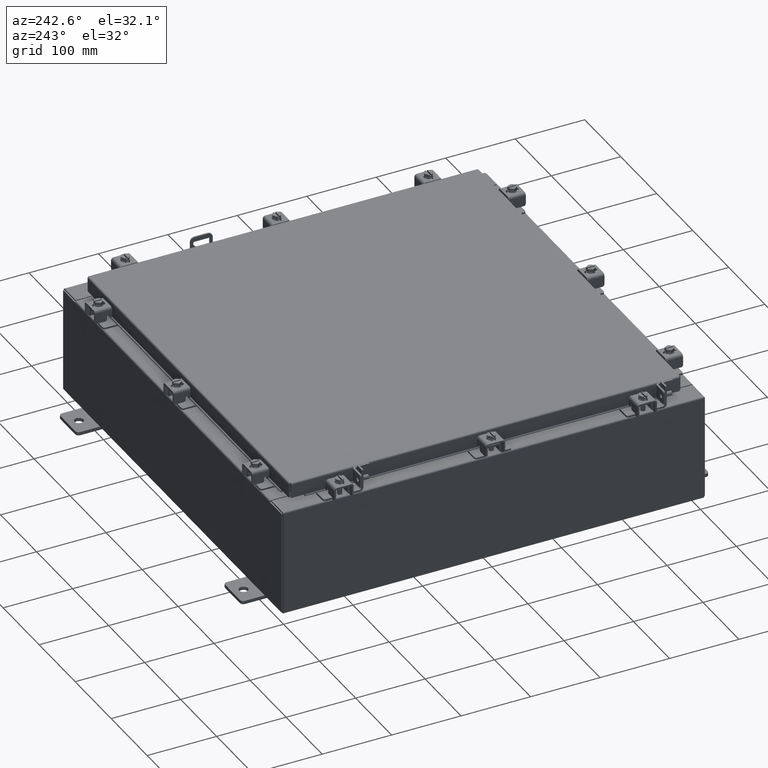
[diagram: clean part render]
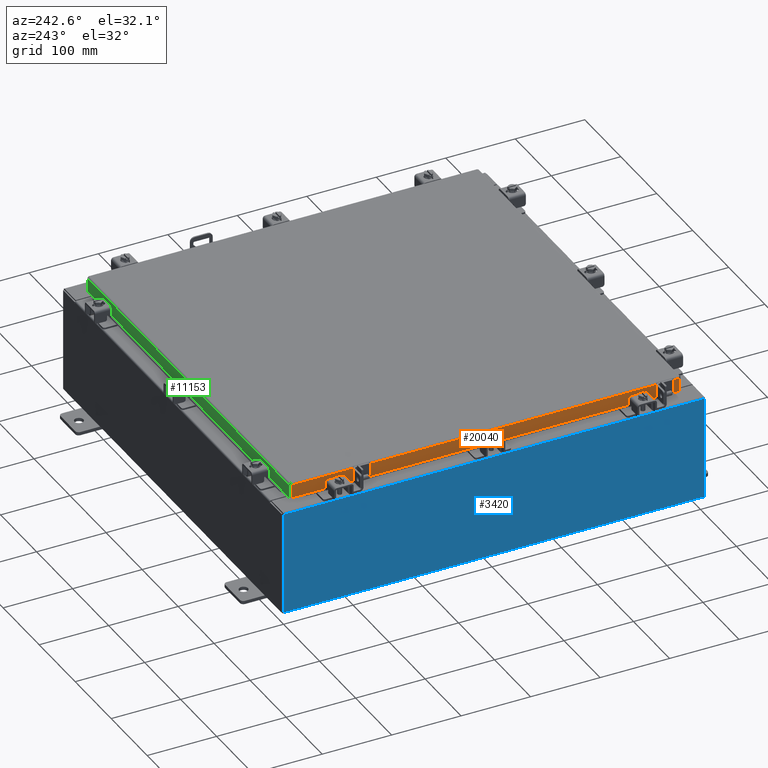
[diagram: same view with three faces highlighted in distinct colors, each labeled with its STEP entity id]
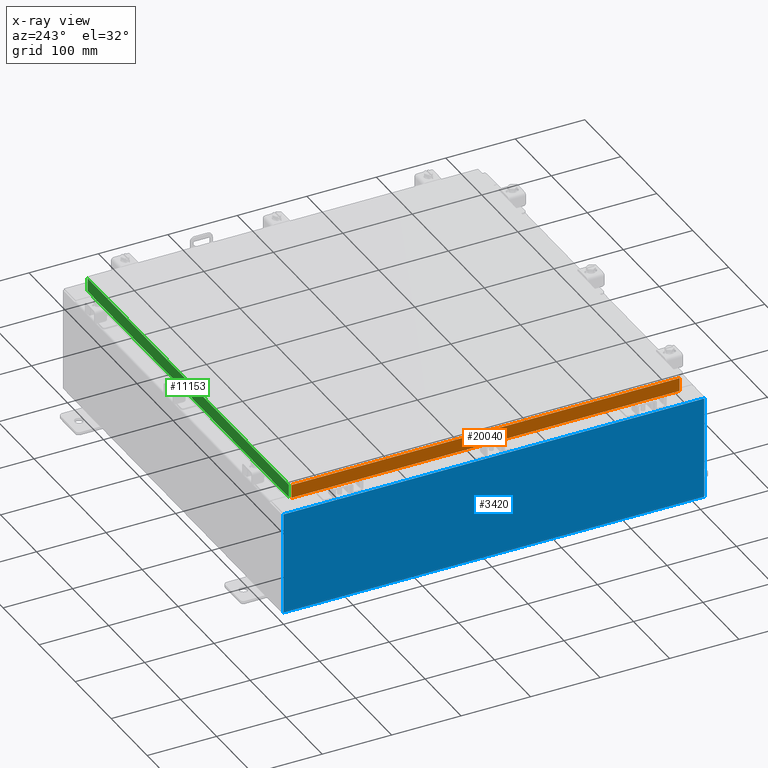
[diagram: x-ray of the same camera — body ghosted, the three highlighted faces saturated]
A machine part, auxiliary view with three faces highlighted in distinct colors.
The next image is the same camera in x-ray (body ghosted, the three faces saturated) — at least one of them is partly hidden behind the body in this view.
Their STEP definitions:

[orange] entity #20040 — the highlighted planar face has unit normal (1, 0, -0).
#373 = CARTESIAN_POINT ( 'NONE',  ( -11.09399999999999800, 10.25515786437626000, -0.8500000000000020900 ) ) ;
#408 = DIRECTION ( 'NONE',  ( 4.379057701015054300E-047, 1.000000000000000000, 1.169666303398706800E-016 ) ) ;
#623 = VECTOR ( 'NONE', #22345, 39.37007874015748100 ) ;
#933 = EDGE_CURVE ( 'NONE', #17993, #19716, #14492, .T. ) ;
#2970 = DIRECTION ( 'NONE',  ( -2.818880942772360100E-015, 6.982962677686267500E-015, -1.000000000000000000 ) ) ;
#3182 = LINE ( 'NONE', #21773, #21200 ) ;
#3230 = VECTOR ( 'NONE', #5118, 39.37007874015748100 ) ;
#3777 = CARTESIAN_POINT ( 'NONE',  ( -11.09400000000000300, 0.0000000000000000000, 3.168943672650545400E-014 ) ) ;
#5013 = VERTEX_POINT ( 'NONE', #12050 ) ;
#5118 = DIRECTION ( 'NONE',  ( 3.297150052053608400E-031, -1.000000000000000000, -8.987264781119276500E-046 ) ) ;
#5540 = EDGE_CURVE ( 'NONE', #5013, #14260, #3182, .T. ) ;
#5773 = VERTEX_POINT ( 'NONE', #22375 ) ;
#6154 = CARTESIAN_POINT ( 'NONE',  ( -11.09400000000000700, 11.00515786437626900, -0.8499999999999966500 ) ) ;
#6810 = CARTESIAN_POINT ( 'NONE',  ( -11.09400000000000300, -11.09400000000000100, -0.08770000000000026400 ) ) ;
#7625 = EDGE_CURVE ( 'NONE', #5773, #5013, #20253, .T. ) ;
#7809 = CARTESIAN_POINT ( 'NONE',  ( -11.09400000000000300, -11.00515786437626900, -0.08770000000000026400 ) ) ;
#8253 = CARTESIAN_POINT ( 'NONE',  ( -11.09400000000000300, -11.00515786437626900, -0.07470000000000015500 ) ) ;
#8983 = PLANE ( 'NONE',  #19942 ) ;
#9055 = DIRECTION ( 'NONE',  ( -2.818880942772360100E-015, 0.0000000000000000000, -1.000000000000000000 ) ) ;
#9640 = EDGE_CURVE ( 'NONE', #17993, #17828, #21253, .T. ) ;
#10438 = VECTOR ( 'NONE', #13804, 39.37007874015748100 ) ;
#10465 = ORIENTED_EDGE ( 'NONE', *, *, #7625, .F. ) ;
#10481 = EDGE_CURVE ( 'NONE', #14260, #19716, #20946, .T. ) ;
#10825 = CARTESIAN_POINT ( 'NONE',  ( -11.09400000000000700, -11.09400000000000100, -0.8499999999999999800 ) ) ;
#11690 = VECTOR ( 'NONE', #408, 39.37007874015748100 ) ;
#12050 = CARTESIAN_POINT ( 'NONE',  ( -11.09399999999999800, -10.25515786437626400, -0.8500000000000020900 ) ) ;
#13586 = FACE_OUTER_BOUND ( 'NONE', #19307, .T. ) ;
#13804 = DIRECTION ( 'NONE',  ( 4.379057701015054300E-047, 1.000000000000000000, 1.169666303398706800E-016 ) ) ;
#14260 = VERTEX_POINT ( 'NONE', #373 ) ;
#14492 = LINE ( 'NONE', #22510, #623 ) ;
#15310 = VECTOR ( 'NONE', #2970, 39.37007874015748100 ) ;
#15567 = CARTESIAN_POINT ( 'NONE',  ( -11.09400000000000700, -11.09400000000000100, -0.8499999999999999800 ) ) ;
#15833 = LINE ( 'NONE', #8253, #15310 ) ;
#16530 = EDGE_CURVE ( 'NONE', #17828, #5773, #15833, .T. ) ;
#16878 = CARTESIAN_POINT ( 'NONE',  ( -11.09400000000000300, 11.00515786437626400, -0.08770000000000026400 ) ) ;
#17589 = ORIENTED_EDGE ( 'NONE', *, *, #16530, .F. ) ;
#17828 = VERTEX_POINT ( 'NONE', #7809 ) ;
#17993 = VERTEX_POINT ( 'NONE', #16878 ) ;
#18831 = ORIENTED_EDGE ( 'NONE', *, *, #9640, .F. ) ;
#19204 = ORIENTED_EDGE ( 'NONE', *, *, #5540, .F. ) ;
#19307 = EDGE_LOOP ( 'NONE', ( #18831, #20101, #20966, #19204, #10465, #17589 ) ) ;
#19518 = DIRECTION ( 'NONE',  ( 1.000000000000000000, 3.297150052053607500E-031, -2.818880942772360100E-015 ) ) ;
#19716 = VERTEX_POINT ( 'NONE', #6154 ) ;
#19942 = AXIS2_PLACEMENT_3D ( 'NONE', #3777, #19518, #9055 ) ;
#20040 = ADVANCED_FACE ( 'NONE', ( #13586 ), #8983, .F. ) ;
#20073 = DIRECTION ( 'NONE',  ( -0.0000000000000000000, 1.000000000000000000, -0.0000000000000000000 ) ) ;
#20101 = ORIENTED_EDGE ( 'NONE', *, *, #933, .T. ) ;
#20253 = LINE ( 'NONE', #15567, #10438 ) ;
#20946 = LINE ( 'NONE', #10825, #11690 ) ;
#20966 = ORIENTED_EDGE ( 'NONE', *, *, #10481, .F. ) ;
#21200 = VECTOR ( 'NONE', #20073, 39.37007874015748100 ) ;
#21253 = LINE ( 'NONE', #6810, #3230 ) ;
#21773 = CARTESIAN_POINT ( 'NONE',  ( -11.09399999999999800, -10.25515786437626000, -0.8500000000000020900 ) ) ;
#22345 = DIRECTION ( 'NONE',  ( -2.818880942772360100E-015, 6.982962677686267500E-015, -1.000000000000000000 ) ) ;
#22375 = CARTESIAN_POINT ( 'NONE',  ( -11.09400000000000700, -11.00515786437626400, -0.8499999999999999800 ) ) ;
#22510 = CARTESIAN_POINT ( 'NONE',  ( -11.09400000000000300, 11.00515786437626400, 1.081811805491048200E-013 ) ) ;

[blue] entity #3420 — the highlighted planar face has unit normal (1, 0, 0).
#247 = VERTEX_POINT ( 'NONE', #498 ) ;
#498 = CARTESIAN_POINT ( 'NONE',  ( -12.00000000000000400, -11.92530000000000000, 0.01299999999999986400 ) ) ;
#927 = CARTESIAN_POINT ( 'NONE',  ( -12.00000000000000400, 11.92529999999999800, 0.01299999999999986400 ) ) ;
#1106 = EDGE_CURVE ( 'NONE', #247, #6137, #16948, .T. ) ;
#1342 = LINE ( 'NONE', #927, #19332 ) ;
#1443 = VERTEX_POINT ( 'NONE', #5123 ) ;
#1956 = EDGE_CURVE ( 'NONE', #21867, #1443, #16647, .T. ) ;
#3267 = VECTOR ( 'NONE', #20164, 39.37007874015748100 ) ;
#3393 = DIRECTION ( 'NONE',  ( -3.319545939341922800E-015, 0.0000000000000000000, 1.000000000000000000 ) ) ;
#3420 = ADVANCED_FACE ( 'NONE', ( #11437 ), #4734, .F. ) ;
#3496 = VECTOR ( 'NONE', #5902, 39.37007874015748100 ) ;
#4066 = EDGE_CURVE ( 'NONE', #6137, #21867, #20989, .T. ) ;
#4383 = CARTESIAN_POINT ( 'NONE',  ( -12.00000000000000400, -11.92530000000000400, -4.009536492811465500E-014 ) ) ;
#4587 = CARTESIAN_POINT ( 'NONE',  ( -12.00000000000000400, 0.0000000000000000000, -4.009536492811465500E-014 ) ) ;
#4734 = PLANE ( 'NONE',  #6508 ) ;
#5123 = CARTESIAN_POINT ( 'NONE',  ( -12.00000000000000400, 11.92529999999999800, 0.01299999999999985900 ) ) ;
#5403 = EDGE_LOOP ( 'NONE', ( #21887, #13989, #10738, #14985 ) ) ;
#5902 = DIRECTION ( 'NONE',  ( 0.0000000000000000000, 1.000000000000000000, 0.0000000000000000000 ) ) ;
#6137 = VERTEX_POINT ( 'NONE', #7701 ) ;
#6508 = AXIS2_PLACEMENT_3D ( 'NONE', #4587, #22573, #21476 ) ;
#7372 = CARTESIAN_POINT ( 'NONE',  ( -12.00000000000002500, -11.92530000000000400, 5.837599999999999200 ) ) ;
#7701 = CARTESIAN_POINT ( 'NONE',  ( -12.00000000000002500, -11.92530000000000000, 5.837599999999999200 ) ) ;
#10738 = ORIENTED_EDGE ( 'NONE', *, *, #18397, .F. ) ;
#11437 = FACE_OUTER_BOUND ( 'NONE', #5403, .T. ) ;
#11802 = VECTOR ( 'NONE', #3393, 39.37007874015748100 ) ;
#13131 = DIRECTION ( 'NONE',  ( -0.0000000000000000000, 1.000000000000000000, -0.0000000000000000000 ) ) ;
#13147 = CARTESIAN_POINT ( 'NONE',  ( -12.00000000000002300, 11.92529999999999800, 5.837599999999999200 ) ) ;
#13989 = ORIENTED_EDGE ( 'NONE', *, *, #1956, .T. ) ;
#14985 = ORIENTED_EDGE ( 'NONE', *, *, #1106, .T. ) ;
#16647 = LINE ( 'NONE', #18590, #3267 ) ;
#16948 = LINE ( 'NONE', #4383, #11802 ) ;
#18397 = EDGE_CURVE ( 'NONE', #247, #1443, #1342, .T. ) ;
#18590 = CARTESIAN_POINT ( 'NONE',  ( -12.00000000000000400, 11.92529999999999800, -4.009536492811465500E-014 ) ) ;
#19332 = VECTOR ( 'NONE', #13131, 39.37007874015748100 ) ;
#20164 = DIRECTION ( 'NONE',  ( 3.319545939341922800E-015, 0.0000000000000000000, -1.000000000000000000 ) ) ;
#20989 = LINE ( 'NONE', #7372, #3496 ) ;
#21476 = DIRECTION ( 'NONE',  ( 3.319545939341922800E-015, 0.0000000000000000000, -1.000000000000000000 ) ) ;
#21867 = VERTEX_POINT ( 'NONE', #13147 ) ;
#21887 = ORIENTED_EDGE ( 'NONE', *, *, #4066, .T. ) ;
#22573 = DIRECTION ( 'NONE',  ( 1.000000000000000000, 0.0000000000000000000, 3.319545939341922800E-015 ) ) ;

[green] entity #11153 — the highlighted planar face has unit normal (0, -1, -0).
#179 = LINE ( 'NONE', #16064, #13530 ) ;
#499 = ORIENTED_EDGE ( 'NONE', *, *, #11206, .F. ) ;
#2075 = CARTESIAN_POINT ( 'NONE',  ( -11.00515786437627100, 11.09399999999999900, -0.8500000000000020900 ) ) ;
#3390 = VERTEX_POINT ( 'NONE', #2075 ) ;
#4483 = DIRECTION ( 'NONE',  ( -1.000000000000000000, -3.470684265319576000E-031, -9.460278716967629600E-046 ) ) ;
#4508 = DIRECTION ( 'NONE',  ( 0.0000000000000000000, 2.818880942772350300E-015, -1.000000000000000000 ) ) ;
#5222 = CARTESIAN_POINT ( 'NONE',  ( -11.09400000000000300, 11.09399999999999900, -0.8500000000000020900 ) ) ;
#5340 = CARTESIAN_POINT ( 'NONE',  ( -11.09400000000000300, 11.09399999999999900, -0.8500000000000020900 ) ) ;
#5728 = ORIENTED_EDGE ( 'NONE', *, *, #7021, .F. ) ;
#5961 = ORIENTED_EDGE ( 'NONE', *, *, #16397, .F. ) ;
#6840 = PLANE ( 'NONE',  #8324 ) ;
#6988 = DIRECTION ( 'NONE',  ( 1.000000000000000000, -4.379057701015054300E-047, 1.231227687788112800E-016 ) ) ;
#7021 = EDGE_CURVE ( 'NONE', #3390, #18326, #21700, .T. ) ;
#7382 = EDGE_CURVE ( 'NONE', #16337, #16020, #11607, .T. ) ;
#7394 = DIRECTION ( 'NONE',  ( -0.0000000000000000000, 2.818880942772350300E-015, -1.000000000000000000 ) ) ;
#7811 = LINE ( 'NONE', #5222, #16532 ) ;
#8324 = AXIS2_PLACEMENT_3D ( 'NONE', #19056, #20799, #10373 ) ;
#8345 = EDGE_CURVE ( 'NONE', #16337, #16056, #21038, .T. ) ;
#8680 = VERTEX_POINT ( 'NONE', #15613 ) ;
#9223 = ORIENTED_EDGE ( 'NONE', *, *, #8345, .F. ) ;
#9624 = DIRECTION ( 'NONE',  ( 1.000000000000000000, -0.0000000000000000000, -0.0000000000000000000 ) ) ;
#10170 = EDGE_LOOP ( 'NONE', ( #9223, #13150, #499, #5961, #5728, #13487 ) ) ;
#10373 = DIRECTION ( 'NONE',  ( 0.0000000000000000000, 2.818880942772350300E-015, -1.000000000000000000 ) ) ;
#10497 = VECTOR ( 'NONE', #4508, 39.37007874015748100 ) ;
#11145 = CARTESIAN_POINT ( 'NONE',  ( -10.25515786437627200, 11.09399999999999200, -0.8500000000000043100 ) ) ;
#11153 = ADVANCED_FACE ( 'NONE', ( #17627 ), #6840, .F. ) ;
#11206 = EDGE_CURVE ( 'NONE', #8680, #16020, #7811, .T. ) ;
#11491 = CARTESIAN_POINT ( 'NONE',  ( 11.00515786437626200, 11.09399999999999800, 3.168943672650545400E-014 ) ) ;
#11607 = LINE ( 'NONE', #11491, #10497 ) ;
#11779 = VECTOR ( 'NONE', #4483, 39.37007874015748100 ) ;
#13150 = ORIENTED_EDGE ( 'NONE', *, *, #7382, .T. ) ;
#13487 = ORIENTED_EDGE ( 'NONE', *, *, #21660, .F. ) ;
#13530 = VECTOR ( 'NONE', #7394, 39.37007874015748100 ) ;
#15416 = CARTESIAN_POINT ( 'NONE',  ( -11.00515786437627100, 11.09399999999999800, -0.08770000000000026400 ) ) ;
#15613 = CARTESIAN_POINT ( 'NONE',  ( 10.25515786437625100, 11.09399999999999200, -0.8500000000000043100 ) ) ;
#15797 = DIRECTION ( 'NONE',  ( 1.000000000000000000, -4.379057701015054300E-047, 1.231227687788112800E-016 ) ) ;
#16020 = VERTEX_POINT ( 'NONE', #20600 ) ;
#16056 = VERTEX_POINT ( 'NONE', #15416 ) ;
#16064 = CARTESIAN_POINT ( 'NONE',  ( -11.00515786437627100, 11.09399999999999800, -0.07470000000000015500 ) ) ;
#16337 = VERTEX_POINT ( 'NONE', #21687 ) ;
#16397 = EDGE_CURVE ( 'NONE', #18326, #8680, #17485, .T. ) ;
#16532 = VECTOR ( 'NONE', #6988, 39.37007874015748100 ) ;
#16683 = CARTESIAN_POINT ( 'NONE',  ( -11.09400000000000300, 11.09399999999999800, -0.08770000000000026400 ) ) ;
#17485 = LINE ( 'NONE', #20065, #18045 ) ;
#17578 = VECTOR ( 'NONE', #15797, 39.37007874015748100 ) ;
#17627 = FACE_OUTER_BOUND ( 'NONE', #10170, .T. ) ;
#18045 = VECTOR ( 'NONE', #9624, 39.37007874015748100 ) ;
#18326 = VERTEX_POINT ( 'NONE', #11145 ) ;
#19056 = CARTESIAN_POINT ( 'NONE',  ( 0.0000000000000000000, 11.09399999999999800, 3.168943672650545400E-014 ) ) ;
#20065 = CARTESIAN_POINT ( 'NONE',  ( -10.25515786437626900, 11.09399999999999200, -0.8500000000000043100 ) ) ;
#20600 = CARTESIAN_POINT ( 'NONE',  ( 11.00515786437626200, 11.09399999999999900, -0.8499999999999999800 ) ) ;
#20799 = DIRECTION ( 'NONE',  ( 3.470684265319575600E-031, -1.000000000000000000, -2.818880942772350300E-015 ) ) ;
#21038 = LINE ( 'NONE', #16683, #11779 ) ;
#21660 = EDGE_CURVE ( 'NONE', #16056, #3390, #179, .T. ) ;
#21687 = CARTESIAN_POINT ( 'NONE',  ( 11.00515786437626200, 11.09399999999999800, -0.08770000000000026400 ) ) ;
#21700 = LINE ( 'NONE', #5340, #17578 ) ;